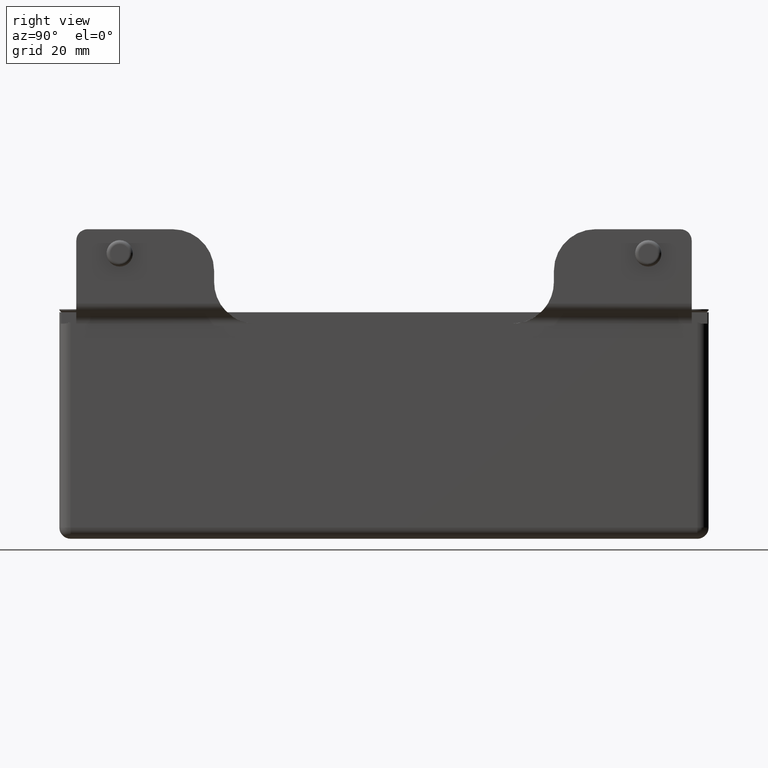
[diagram: clean part render]
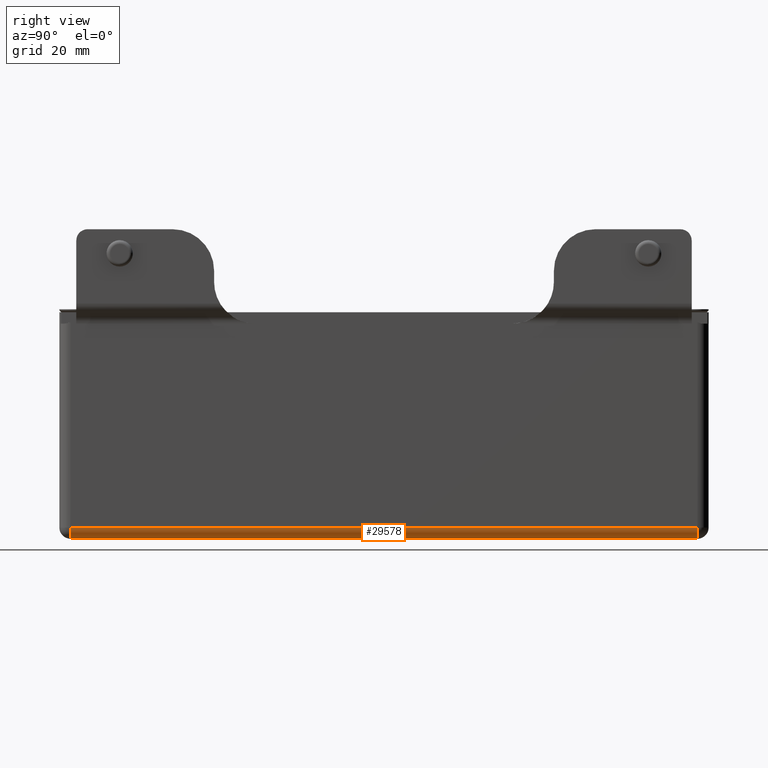
[diagram: same view with one face highlighted and labeled with its STEP entity id]
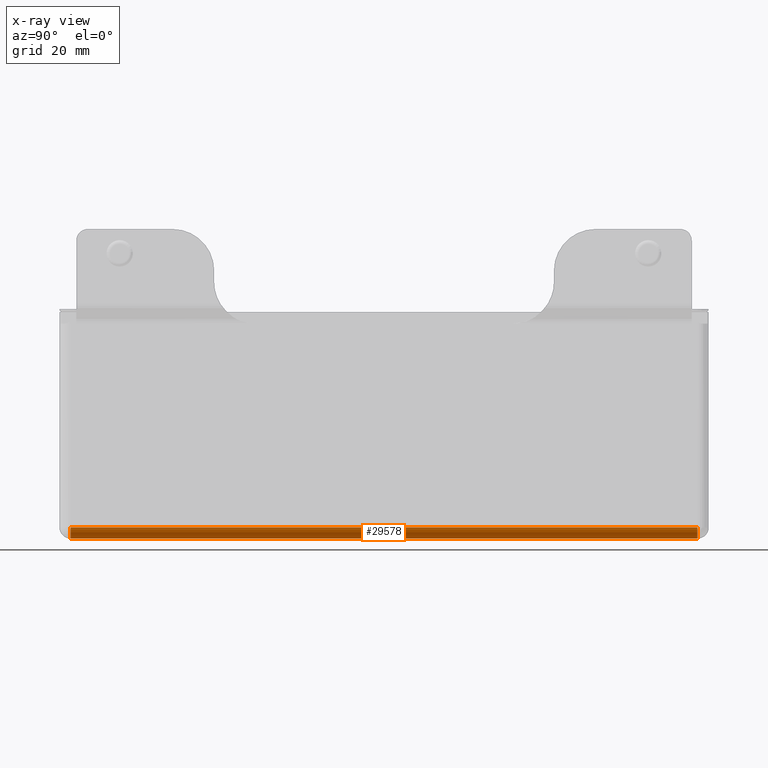
[diagram: x-ray of the same camera — body ghosted, the highlighted face saturated]
A machine part, right view. The second image highlights one B-rep face of the part: STEP entity #29578.
The next image is the same camera in x-ray: the body ghosted, the highlighted face saturated — about 0% of this face is hidden behind the body in this view.
In plain terms, the highlighted cylindrical surface (edge-blend (fillet) strip) has radius 3 mm, axis along (-0, 1, 0).
Its self-contained STEP definition (entity closure, byte-faithful):
#252 = CARTESIAN_POINT ( 'NONE',  ( 15.24999999999998757, 86.00000000000000000, -25.50000000000000355 ) ) ;
#444 = CYLINDRICAL_SURFACE ( 'NONE', #2871, 3.000000000000000888 ) ;
#1848 = VERTEX_POINT ( 'NONE', #20317 ) ;
#2026 = VERTEX_POINT ( 'NONE', #33373 ) ;
#2363 = VECTOR ( 'NONE', #25040, 1000.000000000000000 ) ;
#2615 = LINE ( 'NONE', #252, #32771 ) ;
#2732 = EDGE_CURVE ( 'NONE', #34427, #13138, #20896, .T. ) ;
#2871 = AXIS2_PLACEMENT_3D ( 'NONE', #7409, #24284, #5660 ) ;
#5660 = DIRECTION ( 'NONE',  ( -1.000000000000000000, 0.000000000000000000, 0.000000000000000000 ) ) ;
#7409 = CARTESIAN_POINT ( 'NONE',  ( 12.24999999999998757, 86.00000000000000000, -25.50000000000000355 ) ) ;
#9221 = AXIS2_PLACEMENT_3D ( 'NONE', #13235, #16231, #16462 ) ;
#9599 = ORIENTED_EDGE ( 'NONE', *, *, #24326, .T. ) ;
#11589 = CARTESIAN_POINT ( 'NONE',  ( 12.24999999999998579, 83.00000000000000000, -25.50000000000000355 ) ) ;
#11753 = CIRCLE ( 'NONE', #9221, 2.999999999999999112 ) ;
#12969 = ORIENTED_EDGE ( 'NONE', *, *, #2732, .F. ) ;
#13138 = VERTEX_POINT ( 'NONE', #22422 ) ;
#13235 = CARTESIAN_POINT ( 'NONE',  ( 12.25000000000000888, -82.99999999999997158, -25.50000000000000355 ) ) ;
#16231 = DIRECTION ( 'NONE',  ( -0.000000000000000000, 1.000000000000000000, -0.000000000000000000 ) ) ;
#16462 = DIRECTION ( 'NONE',  ( -1.156482317317871725E-15, 0.000000000000000000, -1.000000000000000000 ) ) ;
#17163 = CARTESIAN_POINT ( 'NONE',  ( 12.24999999999998757, 83.00000000000000000, -28.50000000000000000 ) ) ;
#17517 = DIRECTION ( 'NONE',  ( -0.000000000000000000, 1.000000000000000000, 0.000000000000000000 ) ) ;
#19572 = EDGE_CURVE ( 'NONE', #1848, #34427, #23103, .T. ) ;
#20287 = DIRECTION ( 'NONE',  ( 0.000000000000000000, 0.000000000000000000, 1.000000000000000000 ) ) ;
#20317 = CARTESIAN_POINT ( 'NONE',  ( 15.24999999999998757, 83.00000000000000000, -25.50000000000000355 ) ) ;
#20896 = LINE ( 'NONE', #27706, #2363 ) ;
#21906 = AXIS2_PLACEMENT_3D ( 'NONE', #11589, #17517, #20287 ) ;
#21984 = FACE_OUTER_BOUND ( 'NONE', #25571, .T. ) ;
#22422 = CARTESIAN_POINT ( 'NONE',  ( 12.25000000000000888, -82.99999999999997158, -28.50000000000000000 ) ) ;
#23103 = CIRCLE ( 'NONE', #21906, 2.999999999999999112 ) ;
#24284 = DIRECTION ( 'NONE',  ( -1.210272192541958862E-16, 1.000000000000000000, -0.000000000000000000 ) ) ;
#24326 = EDGE_CURVE ( 'NONE', #2026, #13138, #11753, .T. ) ;
#25040 = DIRECTION ( 'NONE',  ( 1.210272192541958862E-16, -1.000000000000000000, 0.000000000000000000 ) ) ;
#25571 = EDGE_LOOP ( 'NONE', ( #9599, #12969, #32445, #34607 ) ) ;
#27706 = CARTESIAN_POINT ( 'NONE',  ( 12.24999999999999822, 1.482583435863899421E-15, -28.50000000000000000 ) ) ;
#28906 = EDGE_CURVE ( 'NONE', #2026, #1848, #2615, .T. ) ;
#29578 = ADVANCED_FACE ( 'NONE', ( #21984 ), #444, .T. ) ;
#30568 = DIRECTION ( 'NONE',  ( -1.210272192541958862E-16, 1.000000000000000000, 0.000000000000000000 ) ) ;
#32445 = ORIENTED_EDGE ( 'NONE', *, *, #19572, .F. ) ;
#32771 = VECTOR ( 'NONE', #30568, 1000.000000000000000 ) ;
#33373 = CARTESIAN_POINT ( 'NONE',  ( 15.25000000000000888, -82.99999999999997158, -25.50000000000000355 ) ) ;
#34427 = VERTEX_POINT ( 'NONE', #17163 ) ;
#34607 = ORIENTED_EDGE ( 'NONE', *, *, #28906, .F. ) ;